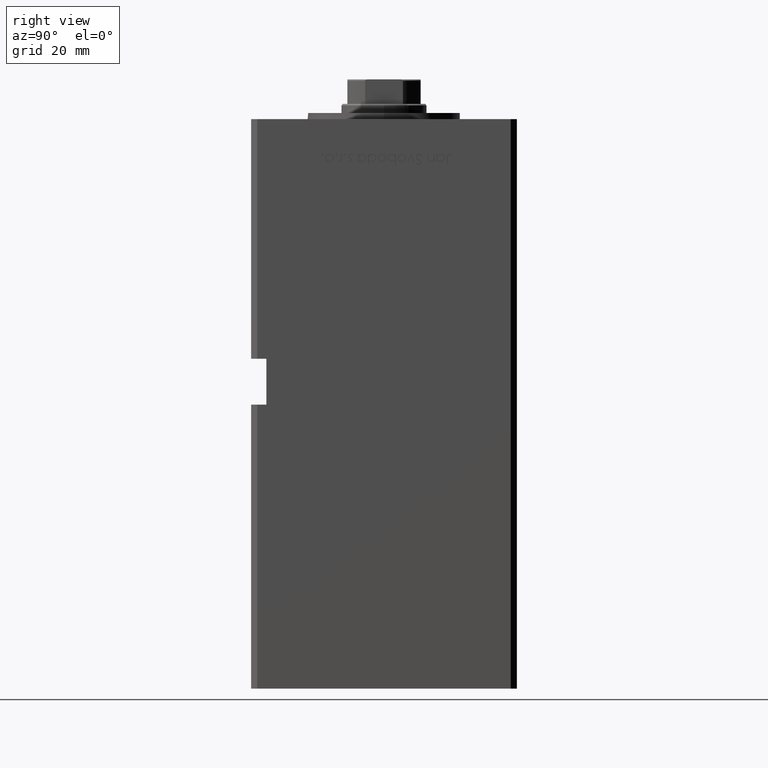
[diagram: clean part render]
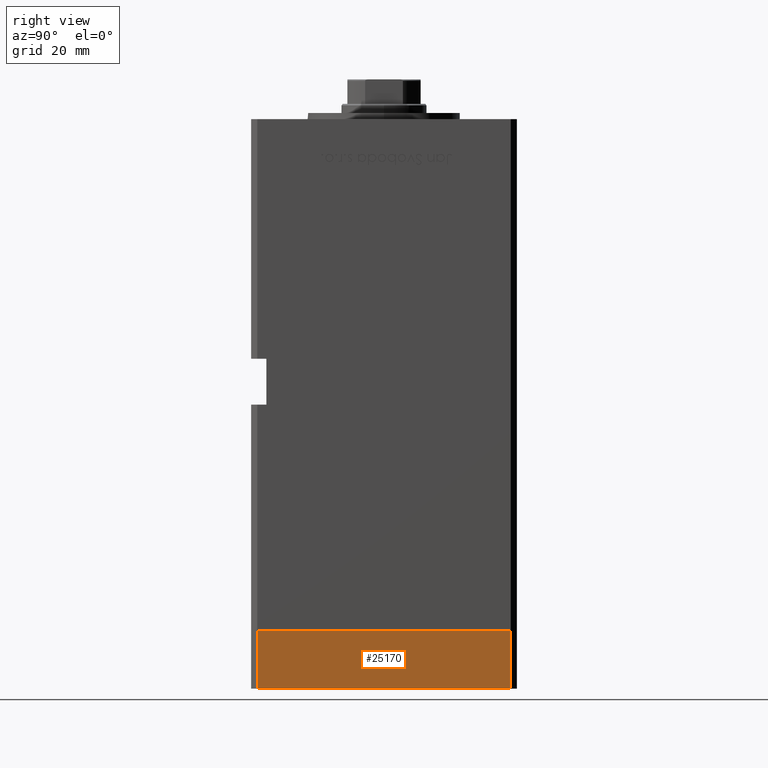
[diagram: same view with one face highlighted and labeled with its STEP entity id]
A machine part, right view. The second image highlights one B-rep face of the part: STEP entity #25170.
In plain terms, the highlighted planar face has unit normal (1, 0, 0).
Its self-contained STEP definition (entity closure, byte-faithful):
#230 = EDGE_CURVE ( 'NONE', #25566, #24414, #37286, .T. ) ;
#815 = PLANE ( 'NONE',  #44895 ) ;
#1044 = EDGE_LOOP ( 'NONE', ( #32832, #24766, #25929, #20161 ) ) ;
#1801 = CARTESIAN_POINT ( 'NONE',  ( -50.00000000000000000, -41.50000000000000000, 0.000000000000000000 ) ) ;
#8363 = DIRECTION ( 'NONE',  ( -1.000000000000000000, -8.360113137237628665E-17, 0.000000000000000000 ) ) ;
#12812 = CARTESIAN_POINT ( 'NONE',  ( -50.00000000000000711, 41.49999999999995026, -19.00000000000000000 ) ) ;
#13984 = LINE ( 'NONE', #50850, #36435 ) ;
#15169 = VECTOR ( 'NONE', #29215, 1000.000000000000000 ) ;
#19160 = CARTESIAN_POINT ( 'NONE',  ( -50.00000000000000711, 41.49999999999995026, 0.000000000000000000 ) ) ;
#20161 = ORIENTED_EDGE ( 'NONE', *, *, #28667, .T. ) ;
#21204 = DIRECTION ( 'NONE',  ( 0.000000000000000000, 0.000000000000000000, 1.000000000000000000 ) ) ;
#24414 = VERTEX_POINT ( 'NONE', #43900 ) ;
#24766 = ORIENTED_EDGE ( 'NONE', *, *, #40214, .F. ) ;
#25170 = ADVANCED_FACE ( 'NONE', ( #37694 ), #815, .T. ) ;
#25566 = VERTEX_POINT ( 'NONE', #35969 ) ;
#25929 = ORIENTED_EDGE ( 'NONE', *, *, #230, .T. ) ;
#27925 = CARTESIAN_POINT ( 'NONE',  ( -50.00000000000000711, 41.49999999999995026, 0.000000000000000000 ) ) ;
#28480 = EDGE_CURVE ( 'NONE', #44314, #28934, #36081, .T. ) ;
#28667 = EDGE_CURVE ( 'NONE', #24414, #28934, #13984, .T. ) ;
#28810 = CARTESIAN_POINT ( 'NONE',  ( -50.00000000000000711, 41.49999999999995026, -19.00000000000000000 ) ) ;
#28934 = VERTEX_POINT ( 'NONE', #1801 ) ;
#29215 = DIRECTION ( 'NONE',  ( 8.360113137237628665E-17, -1.000000000000000000, 0.000000000000000000 ) ) ;
#32832 = ORIENTED_EDGE ( 'NONE', *, *, #28480, .F. ) ;
#33816 = CARTESIAN_POINT ( 'NONE',  ( -50.00000000000000711, 41.49999999999995026, -19.00000000000000000 ) ) ;
#35553 = DIRECTION ( 'NONE',  ( 8.360113137237628665E-17, -1.000000000000000000, 0.000000000000000000 ) ) ;
#35969 = CARTESIAN_POINT ( 'NONE',  ( -50.00000000000000711, 41.49999999999995026, -19.00000000000000000 ) ) ;
#36081 = LINE ( 'NONE', #19160, #42433 ) ;
#36435 = VECTOR ( 'NONE', #46556, 1000.000000000000000 ) ;
#37286 = LINE ( 'NONE', #12812, #15169 ) ;
#37694 = FACE_OUTER_BOUND ( 'NONE', #1044, .T. ) ;
#40214 = EDGE_CURVE ( 'NONE', #25566, #44314, #41649, .T. ) ;
#41649 = LINE ( 'NONE', #33816, #43551 ) ;
#42433 = VECTOR ( 'NONE', #35553, 1000.000000000000000 ) ;
#43551 = VECTOR ( 'NONE', #21204, 1000.000000000000000 ) ;
#43900 = CARTESIAN_POINT ( 'NONE',  ( -50.00000000000000000, -41.50000000000000000, -19.00000000000000000 ) ) ;
#44314 = VERTEX_POINT ( 'NONE', #27925 ) ;
#44895 = AXIS2_PLACEMENT_3D ( 'NONE', #28810, #8363, #45238 ) ;
#45238 = DIRECTION ( 'NONE',  ( 8.360113137237628665E-17, -1.000000000000000000, 0.000000000000000000 ) ) ;
#46556 = DIRECTION ( 'NONE',  ( 0.000000000000000000, 0.000000000000000000, 1.000000000000000000 ) ) ;
#50850 = CARTESIAN_POINT ( 'NONE',  ( -50.00000000000000000, -41.50000000000000000, -19.00000000000000000 ) ) ;